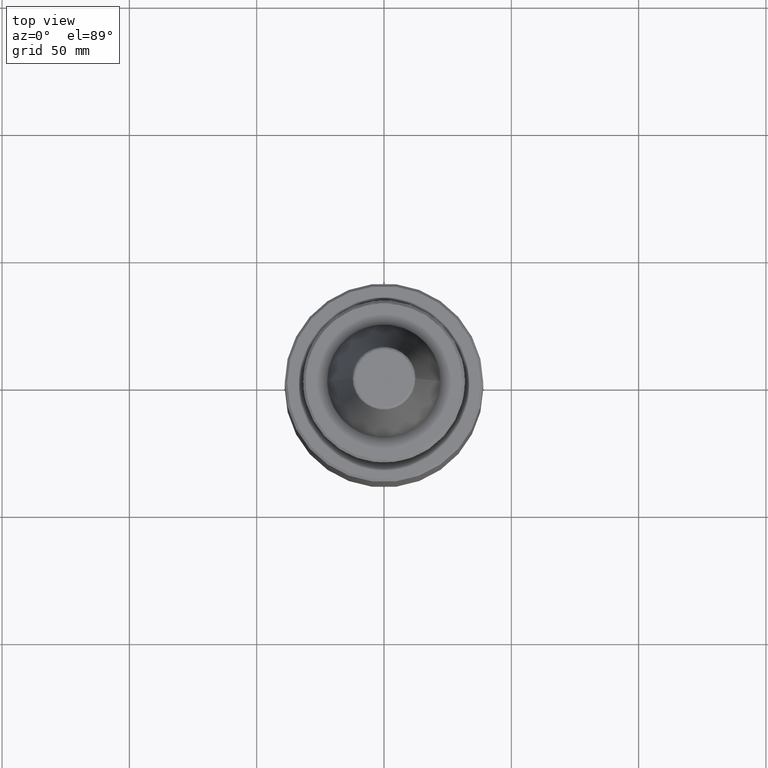
[diagram: clean part render]
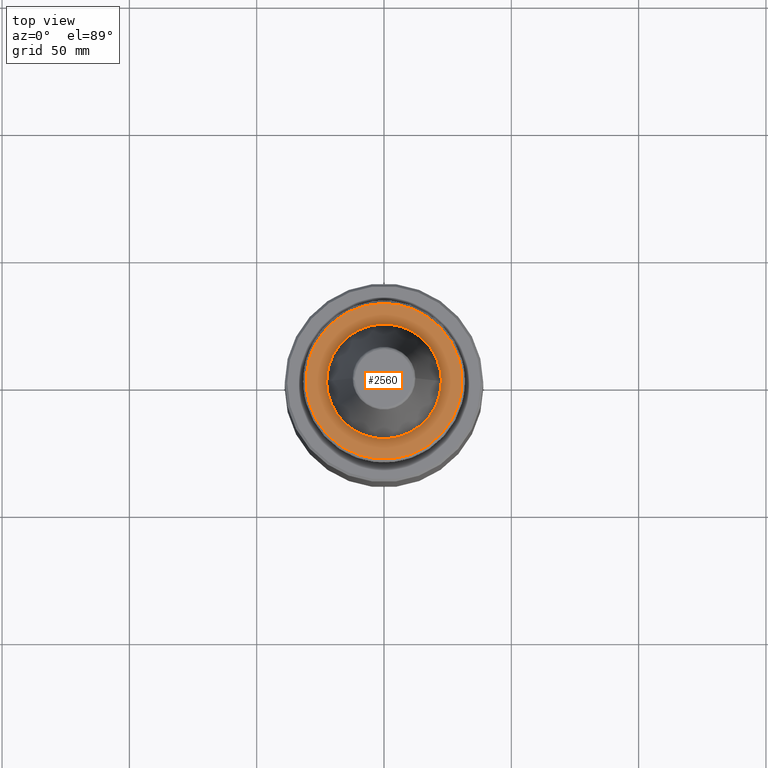
[diagram: same view with one face highlighted and labeled with its STEP entity id]
A machine part, top view. The second image highlights one B-rep face of the part: STEP entity #2560.
In plain terms, the highlighted planar face has unit normal (0, 0, 1).
Its self-contained STEP definition (entity closure, byte-faithful):
#30 = DIRECTION ( 'NONE',  ( 0.0000000000000000000, 0.0000000000000000000, 1.000000000000000000 ) ) ;
#75 = EDGE_CURVE ( 'NONE', #1200, #4271, #2965, .T. ) ;
#150 = CARTESIAN_POINT ( 'NONE',  ( 22.50000000000000400, 0.0000000000000000000, -3.199999999999999300 ) ) ;
#167 = EDGE_CURVE ( 'NONE', #2088, #1413, #4087, .T. ) ;
#207 = CARTESIAN_POINT ( 'NONE',  ( 29.30593451889331300, -8.750000000000007100, -3.200000000000008200 ) ) ;
#214 = CARTESIAN_POINT ( 'NONE',  ( 28.85918037033907500, -10.24629117983707400, -3.200000000000000200 ) ) ;
#217 = CARTESIAN_POINT ( 'NONE',  ( 28.30117587104767600, -11.69968984085176400, -3.200000000000000600 ) ) ;
#218 = CARTESIAN_POINT ( 'NONE',  ( 27.61100680695568600, -13.15427429998765200, -3.200000000000000600 ) ) ;
#220 = CARTESIAN_POINT ( 'NONE',  ( 27.58831379343226000, -13.20180910046797300, -3.199999999999998800 ) ) ;
#223 = CARTESIAN_POINT ( 'NONE',  ( 27.54438001541412700, -13.29323302809357600, -3.200000000000000200 ) ) ;
#229 = CARTESIAN_POINT ( 'NONE',  ( 27.47815279795560900, -13.43017972973373400, -3.199999999999999300 ) ) ;
#231 = CARTESIAN_POINT ( 'NONE',  ( 27.32133677086658000, -13.74839770497310600, -3.199999999999999700 ) ) ;
#237 = CARTESIAN_POINT ( 'NONE',  ( 26.99856130461180500, -14.37953634110118300, -3.200000000000000200 ) ) ;
#238 = CARTESIAN_POINT ( 'NONE',  ( 26.31643672379539500, -15.62062435595463600, -3.200000000000001100 ) ) ;
#245 = CARTESIAN_POINT ( 'NONE',  ( 25.66906082885528000, -16.64808964171013600, -3.200000000000001500 ) ) ;
#248 = CARTESIAN_POINT ( 'NONE',  ( 25.18089566416714200, -17.35872434408001300, -3.200000000000000200 ) ) ;
#252 = CARTESIAN_POINT ( 'NONE',  ( 25.15049554832426500, -17.40274506740398400, -3.199999999999999300 ) ) ;
#263 = CARTESIAN_POINT ( 'NONE',  ( 25.09107183107767400, -17.48831565733838300, -3.200000000000000200 ) ) ;
#272 = CARTESIAN_POINT ( 'NONE',  ( 25.00162825172691000, -17.61641936753450800, -3.200000000000000200 ) ) ;
#277 = CARTESIAN_POINT ( 'NONE',  ( 24.79077054220887900, -17.91356280172054100, -3.200000000000000200 ) ) ;
#278 = CARTESIAN_POINT ( 'NONE',  ( 24.36043102570795300, -18.50078877833959000, -3.199999999999999700 ) ) ;
#279 = CARTESIAN_POINT ( 'NONE',  ( 23.46525560284658200, -19.64699716456565400, -3.200000000000000600 ) ) ;
#283 = CARTESIAN_POINT ( 'NONE',  ( 22.63882571492048600, -20.58104395216734200, -3.200000000000000200 ) ) ;
#289 = CARTESIAN_POINT ( 'NONE',  ( 21.98943496481060900, -21.25737027114399100, -3.199999999999999700 ) ) ;
#292 = CARTESIAN_POINT ( 'NONE',  ( 21.91487604513272200, -21.33423715766516400, -3.199999999999999300 ) ) ;
#295 = CARTESIAN_POINT ( 'NONE',  ( 21.76708313657482600, -21.48502183609672400, -3.199999999999999700 ) ) ;
#300 = CARTESIAN_POINT ( 'NONE',  ( 21.54431431264793100, -21.70996927687924600, -3.200000000000000200 ) ) ;
#303 = CARTESIAN_POINT ( 'NONE',  ( 21.01696416252155700, -22.22623960065148900, -3.199999999999999300 ) ) ;
#305 = CARTESIAN_POINT ( 'NONE',  ( 19.93203895174773200, -23.22435209598143800, -3.200000000000001100 ) ) ;
#313 = CARTESIAN_POINT ( 'NONE',  ( 18.95028892447686900, -24.02085740246784000, -3.199999999999999700 ) ) ;
#321 = CARTESIAN_POINT ( 'NONE',  ( 16.91770336017261700, -25.53517509609310600, -3.200000000000000200 ) ) ;
#325 = CARTESIAN_POINT ( 'NONE',  ( 15.48792760815194000, -26.42690957762343400, -3.199999999999998400 ) ) ;
#330 = CARTESIAN_POINT ( 'NONE',  ( 13.89121605744946600, -27.24785232258912500, -3.199999999999998800 ) ) ;
#331 = CARTESIAN_POINT ( 'NONE',  ( 13.79955834375945400, -27.29438307719280800, -3.199999999999999700 ) ) ;
#335 = CARTESIAN_POINT ( 'NONE',  ( 13.61336996243719500, -27.38773233231433200, -3.199999999999999700 ) ) ;
#338 = CARTESIAN_POINT ( 'NONE',  ( 13.33348093168641700, -27.52628396581056700, -3.200000000000000200 ) ) ;
#341 = CARTESIAN_POINT ( 'NONE',  ( -24.35467712833948900, 18.50000000000000000, -3.200000000000008200 ) ) ;
#343 = CARTESIAN_POINT ( 'NONE',  ( 12.67616131522955100, -27.83926536633289600, -3.200000000000000200 ) ) ;
#346 = CARTESIAN_POINT ( 'NONE',  ( 11.34454123682887200, -28.42400519016858600, -3.200000000000001100 ) ) ;
#350 = CARTESIAN_POINT ( 'NONE',  ( 10.17404257736498800, -28.85454279252668600, -3.199999999999999700 ) ) ;
#351 = CARTESIAN_POINT ( 'NONE',  ( 9.331192961517226400, -29.12613594598023800, -3.199999999999999300 ) ) ;
#357 = CARTESIAN_POINT ( 'NONE',  ( 9.284161809032633900, -29.14115916764607700, -3.199999999999999300 ) ) ;
#366 = CARTESIAN_POINT ( 'NONE',  ( 9.187465360217490900, -29.17179097118495400, -3.200000000000000200 ) ) ;
#374 = CARTESIAN_POINT ( 'NONE',  ( 9.042334779831751500, -29.21737119051607600, -3.200000000000000200 ) ) ;
#376 = CARTESIAN_POINT ( 'NONE',  ( 8.703095408790513700, -29.32115263378182800, -3.199999999999999700 ) ) ;
#377 = AXIS2_PLACEMENT_3D ( 'NONE', #1411, #1606, #789 ) ;
#379 = CARTESIAN_POINT ( 'NONE',  ( 8.022211266143289200, -29.51842591295242400, -3.199999999999999300 ) ) ;
#380 = CARTESIAN_POINT ( 'NONE',  ( 6.650821378589867500, -29.87181404184999800, -3.200000000000001100 ) ) ;
#384 = CARTESIAN_POINT ( 'NONE',  ( 5.458850156814379200, -30.10416084471602700, -3.199999999999999700 ) ) ;
#393 = CARTESIAN_POINT ( 'NONE',  ( 4.606748291942334800, -30.23542110148226000, -3.199999999999999700 ) ) ;
#397 = CARTESIAN_POINT ( 'NONE',  ( 4.560392810196569600, -30.24244440558976200, -3.200000000000001100 ) ) ;
#400 = CARTESIAN_POINT ( 'NONE',  ( 4.463888020560950100, -30.25684056681975800, -3.199999999999999700 ) ) ;
#401 = CARTESIAN_POINT ( 'NONE',  ( 4.319105167327790300, -30.27808647421277000, -3.199999999999999300 ) ) ;
#409 = B_SPLINE_CURVE_WITH_KNOTS ( 'NONE', 3,
 ( #1912, #867, #3094, #3848, #3854, #3578, #2953, #1123, #1853, #2405, #4043, #2039, #1985, #2959, #3256, #4208, #568, #1513, #2151, #4193, #2844, #2012, #3262, #2014, #3409, #3259, #3534, #3611, #4009, #3064, #3396, #3371, #3296, #3400, #3362, #2687, #3137, #3202, #3198, #4018, #3675, #2714, #2875, #3057, #3943, #3446, #2072, #2933, #2964, #3641, #2928, #2939, #2938, #3230, #2785, #2987, #3233, #1849, #4263, #3806, #4267, #4270, #3872, #1501, #3697, #3723, #1962, #3770, #877, #3671, #4038, #4039, #4095, #4100, #4115, #4156, #4159, #4160, #4207, #2793, #4112, #1650, #3186, #3187, #4286, #3672, #3779, #3157, #3643, #2045, #3565, #3042, #3688, #3550, #3556, #3520, #3860, #2482, #2901, #3569, #4282, #3310, #3247, #2000, #3562, #3786 ),
 .UNSPECIFIED., .F., .F.,
 ( 4, 1, 1, 1, 1, 1, 2, 2, 1, 1, 1, 1, 2, 2, 1, 1, 1, 2, 2, 2, 1, 1, 1, 2, 2, 1, 1, 1, 1, 2, 2, 1, 1, 1, 1, 1, 2, 2, 2, 1, 1, 1, 1, 1, 2, 2, 1, 1, 1, 1, 2, 2, 1, 1, 1, 2, 2, 2, 1, 1, 1, 2, 2, 1, 1, 1, 1, 2, 2, 1, 1, 1, 1, 1, 2, 2, 4 ),
 ( 0.0000000000000000000, 0.03124999999999839000, 0.04687499999999758500, 0.05468749999999717600, 0.05859374999999699500, 0.06054687499999689800, 0.06152343749999685700, 0.06249999999999680800, 0.09374999999999644700, 0.1093749999999962800, 0.1171874999999962000, 0.1210937499999961300, 0.1230468749999961400, 0.1249999999999961400, 0.1562499999999958900, 0.1718749999999958400, 0.1796874999999957800, 0.1835937499999957800, 0.1874999999999957800, 0.2499999999999961100, 0.2812499999999963400, 0.2968749999999964500, 0.3046874999999965000, 0.3085937499999965600, 0.3124999999999965600, 0.3437499999999969500, 0.3593749999999971700, 0.3671874999999973400, 0.3710937499999974500, 0.3730468749999974500, 0.3749999999999974500, 0.4062499999999965000, 0.4218749999999960000, 0.4296874999999957800, 0.4335937499999956700, 0.4355468749999956100, 0.4365234374999956100, 0.4374999999999956100, 0.4999999999999944500, 0.5312499999999938900, 0.5468749999999936700, 0.5546874999999936700, 0.5585937499999935600, 0.5605468749999935600, 0.5615234374999934500, 0.5624999999999934500, 0.5937499999999932300, 0.6093749999999931200, 0.6171874999999931200, 0.6210937499999930100, 0.6230468749999930100, 0.6249999999999930100, 0.6562499999999930100, 0.6718749999999931200, 0.6796874999999932300, 0.6835937499999932300, 0.6874999999999932300, 0.7499999999999935600, 0.7812499999999936700, 0.7968749999999937800, 0.8046874999999938900, 0.8085937499999938900, 0.8124999999999938900, 0.8437499999999942300, 0.8593749999999944500, 0.8671874999999946700, 0.8710937499999947800, 0.8730468749999948900, 0.8749999999999950000, 0.9062499999999963400, 0.9218749999999971100, 0.9296874999999975600, 0.9335937499999976700, 0.9355468749999977800, 0.9365234374999977800, 0.9374999999999978900, 1.000000000000000000 ),
 .UNSPECIFIED. ) ;
#412 = ORIENTED_EDGE ( 'NONE', *, *, #1022, .T. ) ;
#415 = CARTESIAN_POINT ( 'NONE',  ( 3.981098828325630100, -30.32522191696599000, -3.200000000000001100 ) ) ;
#431 = AXIS2_PLACEMENT_3D ( 'NONE', #1792, #2988, #2936 ) ;
#433 = CARTESIAN_POINT ( 'NONE',  ( 3.304367424488805000, -30.40973943781709500, -3.200000000000000600 ) ) ;
#435 = CARTESIAN_POINT ( 'NONE',  ( 1.948029713485159900, -30.53976102089799500, -3.199999999999999700 ) ) ;
#437 = CARTESIAN_POINT ( 'NONE',  ( 0.7805261269163517000, -30.58432787733083600, -3.200000000000001100 ) ) ;
#441 = CARTESIAN_POINT ( 'NONE',  ( -1.561052253832720300, -30.58428797049064600, -3.200000000000001100 ) ) ;
#443 = CARTESIAN_POINT ( 'NONE',  ( -3.114025609422949300, -30.46541640380770100, -3.200000000000000200 ) ) ;
#449 = CARTESIAN_POINT ( 'NONE',  ( -4.705085878603386900, -30.22027126947340700, -3.200000000000000600 ) ) ;
#451 = DIRECTION ( 'NONE',  ( -0.0000000000000000000, -0.0000000000000000000, 1.000000000000000000 ) ) ;
#452 = CARTESIAN_POINT ( 'NONE',  ( -4.757131534854949000, -30.21212539776216800, -3.200000000000000600 ) ) ;
#456 = CARTESIAN_POINT ( 'NONE',  ( -4.857303280956157800, -30.19618385838561600, -3.200000000000000600 ) ) ;
#464 = CARTESIAN_POINT ( 'NONE',  ( -5.007473042406692400, -30.17190452208984700, -3.200000000000000600 ) ) ;
#468 = CARTESIAN_POINT ( 'NONE',  ( -5.357254148549006200, -30.11268354678315300, -3.200000000000000200 ) ) ;
#478 = ORIENTED_EDGE ( 'NONE', *, *, #75, .T. ) ;
#481 = CARTESIAN_POINT ( 'NONE',  ( -6.054356345197882100, -29.98396483370338900, -3.200000000000000600 ) ) ;
#485 = CARTESIAN_POINT ( 'NONE',  ( -7.438720675952639600, -29.68542035767848500, -3.199999999999999700 ) ) ;
#489 = CARTESIAN_POINT ( 'NONE',  ( -8.608449995097272400, -29.35905586417358700, -3.199999999999999700 ) ) ;
#492 = CARTESIAN_POINT ( 'NONE',  ( -9.429042497908962900, -29.09460387900230300, -3.199999999999999700 ) ) ;
#494 = CARTESIAN_POINT ( 'NONE',  ( -9.479920520537861600, -29.07806852477693100, -3.199999999999999700 ) ) ;
#498 = CARTESIAN_POINT ( 'NONE',  ( -9.578915174282531800, -29.04560989628072000, -3.200000000000000200 ) ) ;
#501 = CARTESIAN_POINT ( 'NONE',  ( -9.727253638791076200, -28.99655467839322000, -3.200000000000000200 ) ) ;
#505 = CARTESIAN_POINT ( 'NONE',  ( -10.07230210988518800, -28.87952157732034000, -3.200000000000000200 ) ) ;
#506 = CARTESIAN_POINT ( 'NONE',  ( -10.75810060103672100, -28.63517167116631900, -3.199999999999999700 ) ) ;
#511 = CARTESIAN_POINT ( 'NONE',  ( -12.11250377919313700, -28.10533704282527600, -3.200000000000001100 ) ) ;
#513 = CARTESIAN_POINT ( 'NONE',  ( -13.24394569621862800, -27.58067624819064200, -3.200000000000000600 ) ) ;
#519 = CARTESIAN_POINT ( 'NONE',  ( -14.07778958757631200, -27.15192223847207100, -3.199999999999999700 ) ) ;
#523 = CARTESIAN_POINT ( 'NONE',  ( -14.17277443620453800, -27.10247095660120900, -3.199999999999999300 ) ) ;
#524 = CARTESIAN_POINT ( 'NONE',  ( -14.35953925149539000, -27.00399422412742800, -3.199999999999999300 ) ) ;
#528 = CARTESIAN_POINT ( 'NONE',  ( -14.63881711983233200, -26.85489300922699100, -3.200000000000000600 ) ) ;
#533 = CARTESIAN_POINT ( 'NONE',  ( -15.28437999708978300, -26.49728736113105000, -3.200000000000000200 ) ) ;
#543 = CARTESIAN_POINT ( 'NONE',  ( -16.55116382282311000, -25.74326481162604800, -3.200000000000000600 ) ) ;
#544 = CARTESIAN_POINT ( 'NONE',  ( -17.59524950982610700, -25.03042619208500200, -3.200000000000000200 ) ) ;
#548 = CARTESIAN_POINT ( 'NONE',  ( -19.62778218947417800, -23.51603751685868800, -3.199999999999999300 ) ) ;
#549 = CARTESIAN_POINT ( 'NONE',  ( -20.89129424423141800, -22.40114452925218900, -3.200000000000000200 ) ) ;
#553 = CARTESIAN_POINT ( 'NONE',  ( -22.13473294562368900, -21.10604030068857600, -3.199999999999999700 ) ) ;
#554 = CARTESIAN_POINT ( 'NONE',  ( -22.20554153728639700, -21.03152593330346000, -3.200000000000000200 ) ) ;
#555 = CARTESIAN_POINT ( 'NONE',  ( -22.34825637510536800, -20.87982665237509000, -3.200000000000000200 ) ) ;
#560 = CARTESIAN_POINT ( 'NONE',  ( -22.56109142496701000, -20.65127541911947900, -3.199999999999999700 ) ) ;
#565 = CARTESIAN_POINT ( 'NONE',  ( -23.04904609324316300, -20.11097302514834300, -3.199999999999999700 ) ) ;
#567 = CARTESIAN_POINT ( 'NONE',  ( -23.99031363752471800, -19.00230350504062900, -3.200000000000000200 ) ) ;
#568 = CARTESIAN_POINT ( 'NONE',  ( -20.95368502148434700, 8.197263642344069000, -3.199999999999999300 ) ) ;
#571 = CARTESIAN_POINT ( 'NONE',  ( -24.73772846015907600, -18.00390437552178100, -3.200000000000000600 ) ) ;
#573 = CARTESIAN_POINT ( 'NONE',  ( -25.23910393721066500, -17.27398592321673800, -3.200000000000001100 ) ) ;
#580 = CARTESIAN_POINT ( 'NONE',  ( -25.26695455758237000, -17.23321866383328400, -3.200000000000001100 ) ) ;
#583 = ORIENTED_EDGE ( 'NONE', *, *, #1768, .T. ) ;
#589 = CARTESIAN_POINT ( 'NONE',  ( -25.32397030503437600, -17.14932757286770800, -3.199999999999999700 ) ) ;
#600 = CARTESIAN_POINT ( 'NONE',  ( -25.40916637817199900, -17.02330348438457400, -3.200000000000000600 ) ) ;
#601 = CARTESIAN_POINT ( 'NONE',  ( -25.60566437921046300, -16.72793511368061600, -3.200000000000000600 ) ) ;
#604 = CARTESIAN_POINT ( 'NONE',  ( -25.98948903615665500, -16.13194971529933500, -3.200000000000001100 ) ) ;
#610 = CARTESIAN_POINT ( 'NONE',  ( -26.72045296952620300, -14.91898429064329100, -3.200000000000000200 ) ) ;
#614 = CARTESIAN_POINT ( 'NONE',  ( -27.28410426008951400, -13.84330885026365000, -3.200000000000000200 ) ) ;
#617 = CARTESIAN_POINT ( 'NONE',  ( -27.65365956857718600, -13.06437642884289800, -3.200000000000000200 ) ) ;
#619 = CARTESIAN_POINT ( 'NONE',  ( -27.67364674244896200, -13.02197758003636700, -3.199999999999999700 ) ) ;
#625 = CARTESIAN_POINT ( 'NONE',  ( -27.71504625243959900, -12.93363446210930500, -3.200000000000000200 ) ) ;
#630 = CARTESIAN_POINT ( 'NONE',  ( -27.77681930598629400, -12.80099507029938600, -3.200000000000000200 ) ) ;
#633 = CARTESIAN_POINT ( 'NONE',  ( -27.91867295085388500, -12.49063015164102500, -3.200000000000000200 ) ) ;
#636 = DIRECTION ( 'NONE',  ( 1.000000000000000000, 0.0000000000000000000, 0.0000000000000000000 ) ) ;
#639 = CARTESIAN_POINT ( 'NONE',  ( -28.19324632029016400, -11.86640829658339900, -3.200000000000000600 ) ) ;
#645 = CARTESIAN_POINT ( 'NONE',  ( -28.70585737796716300, -10.60399651550457800, -3.199999999999999700 ) ) ;
#649 = CARTESIAN_POINT ( 'NONE',  ( -29.08260568821225400, -9.497984010070885200, -3.199999999999999700 ) ) ;
#651 = CARTESIAN_POINT ( 'NONE',  ( -29.30593451889332000, -8.749999999999980500, -3.200000000000008200 ) ) ;
#789 = DIRECTION ( 'NONE',  ( 1.000000000000000000, 0.0000000000000000000, 0.0000000000000000000 ) ) ;
#809 = CARTESIAN_POINT ( 'NONE',  ( -18.49999999999999300, 24.35467712833949200, -3.200000000000008200 ) ) ;
#867 = CARTESIAN_POINT ( 'NONE',  ( -22.50000000000000700, 0.6880163828565797300, -3.200000000000001100 ) ) ;
#877 = CARTESIAN_POINT ( 'NONE',  ( 8.197263642342381500, 20.95368502148494400, -3.199999999999999700 ) ) ;
#986 = VERTEX_POINT ( 'NONE', #2331 ) ;
#1022 = EDGE_CURVE ( 'NONE', #2163, #1200, #3907, .T. ) ;
#1024 = CARTESIAN_POINT ( 'NONE',  ( 0.0000000000000000000, 0.0000000000000000000, -3.200000000000000200 ) ) ;
#1072 = CARTESIAN_POINT ( 'NONE',  ( -18.49999999999999300, 24.35467712833949200, -3.200000000000008200 ) ) ;
#1076 = CARTESIAN_POINT ( 'NONE',  ( -16.56085603400545400, 25.82766579420669100, -3.200000000000000200 ) ) ;
#1079 = CARTESIAN_POINT ( 'NONE',  ( -14.47569103934079100, 27.05153356260233700, -3.200000000000001100 ) ) ;
#1080 = CARTESIAN_POINT ( 'NONE',  ( -12.17478045277671400, 28.05674127324285600, -3.200000000000000600 ) ) ;
#1083 = CARTESIAN_POINT ( 'NONE',  ( -12.10176357994678900, 28.08831770797851100, -3.200000000000000200 ) ) ;
#1089 = CARTESIAN_POINT ( 'NONE',  ( -11.95872026364780000, 28.14951867897517300, -3.200000000000000200 ) ) ;
#1094 = CARTESIAN_POINT ( 'NONE',  ( -11.74385340895946000, 28.24048383201479200, -3.199999999999998800 ) ) ;
#1095 = CARTESIAN_POINT ( 'NONE',  ( -11.24038425300771300, 28.44688173158634500, -3.200000000000000200 ) ) ;
#1101 = CARTESIAN_POINT ( 'NONE',  ( -10.22499329438831600, 28.83626103397912000, -3.200000000000000600 ) ) ;
#1114 = CARTESIAN_POINT ( 'NONE',  ( -9.340167935487325900, 29.12987215588665500, -3.200000000000001100 ) ) ;
#1118 = CARTESIAN_POINT ( 'NONE',  ( -8.594763330007086900, 29.35224666533308000, -3.200000000000000200 ) ) ;
#1120 = CARTESIAN_POINT ( 'NONE',  ( -8.442993445794760600, 29.39627059819352400, -3.200000000000001500 ) ) ;
#1122 = CARTESIAN_POINT ( 'NONE',  ( -8.141340568232401200, 29.48124923291835800, -3.200000000000000600 ) ) ;
#1123 = CARTESIAN_POINT ( 'NONE',  ( -22.13986916256529700, 4.009566559497096200, -3.200000000000000200 ) ) ;
#1125 = CARTESIAN_POINT ( 'NONE',  ( -7.688059179634872300, 29.60519698498068300, -3.199999999999999700 ) ) ;
#1128 = CARTESIAN_POINT ( 'NONE',  ( -6.624788100462759600, 29.86976700628514100, -3.200000000000001100 ) ) ;
#1135 = CARTESIAN_POINT ( 'NONE',  ( -5.703788022696000000, 30.05429890996154500, -3.200000000000000200 ) ) ;
#1139 = CARTESIAN_POINT ( 'NONE',  ( -3.848954711098727400, 30.36703951691590900, -3.200000000000000200 ) ) ;
#1142 = CARTESIAN_POINT ( 'NONE',  ( -2.603266312790086800, 30.49913331156700400, -3.199999999999999700 ) ) ;
#1146 = CARTESIAN_POINT ( 'NONE',  ( -1.037282440229544600, 30.56832190550193200, -3.200000000000000600 ) ) ;
#1156 = CARTESIAN_POINT ( 'NONE',  ( -0.7285515701980412900, 30.57722589313950900, -3.199999999999999700 ) ) ;
#1163 = CARTESIAN_POINT ( 'NONE',  ( -0.1069271606823981000, 30.58574494882358200, -3.200000000000000200 ) ) ;
#1169 = ORIENTED_EDGE ( 'NONE', *, *, #2336, .T. ) ;
#1173 = CARTESIAN_POINT ( 'NONE',  ( 0.8252062185630970600, 30.58430088160914900, -3.200000000000000600 ) ) ;
#1174 = CARTESIAN_POINT ( 'NONE',  ( 1.756429892724695700, 30.54018886217315700, -3.200000000000000600 ) ) ;
#1175 = CARTESIAN_POINT ( 'NONE',  ( 2.454392795803937800, 30.48577087148537100, -3.200000000000000200 ) ) ;
#1178 = CARTESIAN_POINT ( 'NONE',  ( 2.528533460623735500, 30.47970956005867300, -3.199999999999999700 ) ) ;
#1181 = CARTESIAN_POINT ( 'NONE',  ( 2.680059272113283000, 30.46677238502096000, -3.200000000000000200 ) ) ;
#1184 = CARTESIAN_POINT ( 'NONE',  ( 2.907181702341881100, 30.44653720226314800, -3.199999999999999300 ) ) ;
#1185 = CARTESIAN_POINT ( 'NONE',  ( 3.435970030501877200, 30.39351583441936800, -3.200000000000001500 ) ) ;
#1186 = CARTESIAN_POINT ( 'NONE',  ( 4.488890650661606900, 30.26424933309646200, -3.199999999999999700 ) ) ;
#1190 = CARTESIAN_POINT ( 'NONE',  ( 6.576107746340010600, 29.91282126790918400, -3.200000000000000600 ) ) ;
#1191 = CARTESIAN_POINT ( 'NONE',  ( 8.333223866108296500, 29.45234853339185200, -3.200000000000000200 ) ) ;
#1198 = CARTESIAN_POINT ( 'NONE',  ( 11.80488663217959200, 28.31907149283381000, -3.199999999999999700 ) ) ;
#1200 = VERTEX_POINT ( 'NONE', #1841 ) ;
#1201 = CARTESIAN_POINT ( 'NONE',  ( 13.99881594514026300, 27.30134385075362900, -3.200000000000000200 ) ) ;
#1204 = CARTESIAN_POINT ( 'NONE',  ( 16.13498759199469400, 25.98207429179466400, -3.200000000000000200 ) ) ;
#1205 = CARTESIAN_POINT ( 'NONE',  ( 16.20252111302220800, 25.94001894739672000, -3.200000000000000600 ) ) ;
#1210 = CARTESIAN_POINT ( 'NONE',  ( 16.33427142386733900, 25.85726144148922100, -3.200000000000000200 ) ) ;
#1217 = CARTESIAN_POINT ( 'NONE',  ( 16.53138120580552700, 25.73240088654140200, -3.199999999999999700 ) ) ;
#1221 = CARTESIAN_POINT ( 'NONE',  ( 16.98769424002150100, 25.43598951905729100, -3.200000000000000200 ) ) ;
#1222 = CIRCLE ( 'NONE', #1910, 30.58431457505076500 ) ;
#1234 = CARTESIAN_POINT ( 'NONE',  ( 17.88588114722745500, 24.82288649366540800, -3.200000000000000200 ) ) ;
#1235 = CARTESIAN_POINT ( 'NONE',  ( 18.63100279130232900, 24.26260340260329700, -3.199999999999999300 ) ) ;
#1236 = CARTESIAN_POINT ( 'NONE',  ( 19.23818591257809300, 23.77638626441000000, -3.200000000000000200 ) ) ;
#1239 = CARTESIAN_POINT ( 'NONE',  ( 19.36078262650642800, 23.67667543167849300, -3.200000000000001100 ) ) ;
#1240 = CARTESIAN_POINT ( 'NONE',  ( 19.60237854233164600, 23.47705769606649500, -3.200000000000001100 ) ) ;
#1241 = CARTESIAN_POINT ( 'NONE',  ( 19.96233499371120600, 23.17496761740666100, -3.200000000000000200 ) ) ;
#1242 = CARTESIAN_POINT ( 'NONE',  ( 20.78517142375569200, 22.45144644050765900, -3.200000000000000200 ) ) ;
#1250 = CARTESIAN_POINT ( 'NONE',  ( 21.46121072406610600, 21.79932372883518700, -3.200000000000000200 ) ) ;
#1256 = CARTESIAN_POINT ( 'NONE',  ( 22.77429056695474300, 20.45246270162109400, -3.200000000000001100 ) ) ;
#1258 = CARTESIAN_POINT ( 'NONE',  ( 23.59206616273494100, 19.50355204636023000, -3.199999999999999700 ) ) ;
#1262 = CARTESIAN_POINT ( 'NONE',  ( 24.54047191476543300, 18.25550594148994000, -3.200000000000000600 ) ) ;
#1265 = CARTESIAN_POINT ( 'NONE',  ( 24.72355445175357900, 18.00675945254044300, -3.200000000000000200 ) ) ;
#1281 = CARTESIAN_POINT ( 'NONE',  ( 25.08445269893013600, 17.50055599937444800, -3.200000000000000200 ) ) ;
#1284 = CARTESIAN_POINT ( 'NONE',  ( 25.61393462947731700, 16.73340307638303400, -3.200000000000000200 ) ) ;
#1292 = CARTESIAN_POINT ( 'NONE',  ( 26.10782023937147400, 15.94270692366432000, -3.200000000000000200 ) ) ;
#1295 = CARTESIAN_POINT ( 'NONE',  ( 26.46043628646557600, 15.33791319426163500, -3.199999999999999300 ) ) ;
#1301 = CARTESIAN_POINT ( 'NONE',  ( 26.49765628487140000, 15.27351905694589700, -3.200000000000000600 ) ) ;
#1304 = CARTESIAN_POINT ( 'NONE',  ( 26.57327955334312700, 15.14158967653228200, -3.199999999999999300 ) ) ;
#1305 = CARTESIAN_POINT ( 'NONE',  ( 26.68593816532839800, 14.94335966608096700, -3.200000000000000600 ) ) ;
#1307 = CARTESIAN_POINT ( 'NONE',  ( 26.94337422490445300, 14.47847139621148000, -3.199999999999999300 ) ) ;
#1310 = CARTESIAN_POINT ( 'NONE',  ( 27.43651020383163100, 13.53928854120698800, -3.200000000000001500 ) ) ;
#1311 = CARTESIAN_POINT ( 'NONE',  ( 28.33583760078616000, 11.62329757013587900, -3.200000000000000600 ) ) ;
#1336 = CARTESIAN_POINT ( 'NONE',  ( 29.30593451889332000, 8.749999999999980500, -3.200000000000008200 ) ) ;
#1341 = CARTESIAN_POINT ( 'NONE',  ( 28.95764183663322900, 9.916519147397023600, -3.200000000000000200 ) ) ;
#1411 = CARTESIAN_POINT ( 'NONE',  ( 0.0000000000000000000, 0.0000000000000000000, -3.200000000000008200 ) ) ;
#1413 = VERTEX_POINT ( 'NONE', #1487 ) ;
#1451 = EDGE_CURVE ( 'NONE', #986, #3636, #3910, .T. ) ;
#1487 = CARTESIAN_POINT ( 'NONE',  ( 30.58431457505076500, 0.0000000000000000000, -3.200000000000003700 ) ) ;
#1501 = CARTESIAN_POINT ( 'NONE',  ( 5.873028755120320600, 21.74157624393063400, -3.200000000000000600 ) ) ;
#1513 = CARTESIAN_POINT ( 'NONE',  ( -20.93772414133938800, 8.237955812653009200, -3.200000000000000200 ) ) ;
#1606 = DIRECTION ( 'NONE',  ( -0.0000000000000000000, -0.0000000000000000000, 1.000000000000000000 ) ) ;
#1611 = AXIS2_PLACEMENT_3D ( 'NONE', #1652, #451, #636 ) ;
#1650 = CARTESIAN_POINT ( 'NONE',  ( 18.06135158014742400, 13.42792791066801300, -3.200000000000000600 ) ) ;
#1652 = CARTESIAN_POINT ( 'NONE',  ( 0.0000000000000000000, 0.0000000000000000000, -3.200000000000008200 ) ) ;
#1768 = EDGE_CURVE ( 'NONE', #4271, #2088, #3087, .T. ) ;
#1787 = CARTESIAN_POINT ( 'NONE',  ( -29.30593451889332000, -8.749999999999980500, -3.200000000000008200 ) ) ;
#1792 = CARTESIAN_POINT ( 'NONE',  ( 0.0000000000000000000, 0.0000000000000000000, -3.200000000000008200 ) ) ;
#1804 = VERTEX_POINT ( 'NONE', #150 ) ;
#1841 = CARTESIAN_POINT ( 'NONE',  ( -29.30593451889331300, 8.750000000000008900, -3.200000000000008200 ) ) ;
#1849 = CARTESIAN_POINT ( 'NONE',  ( 3.797919010150632600, 22.17744484798479100, -3.200000000000000600 ) ) ;
#1853 = CARTESIAN_POINT ( 'NONE',  ( -22.13216582914423100, 4.051871761184235000, -3.200000000000000200 ) ) ;
#1859 = CARTESIAN_POINT ( 'NONE',  ( -22.50000000000000400, 2.755455298081544800E-015, -3.199999999999999300 ) ) ;
#1899 = DIRECTION ( 'NONE',  ( -0.0000000000000000000, -0.0000000000000000000, 1.000000000000000000 ) ) ;
#1910 = AXIS2_PLACEMENT_3D ( 'NONE', #4194, #1899, #3874 ) ;
#1912 = CARTESIAN_POINT ( 'NONE',  ( -22.50000000000000400, 2.755455298081544800E-015, -3.199999999999999300 ) ) ;
#1962 = CARTESIAN_POINT ( 'NONE',  ( 7.984698353428139100, 21.03591195339260300, -3.200000000000000200 ) ) ;
#1976 = EDGE_CURVE ( 'NONE', #1413, #986, #3023, .T. ) ;
#1985 = CARTESIAN_POINT ( 'NONE',  ( -21.36063849916189700, 7.086048807666240500, -3.199999999999999300 ) ) ;
#2000 = CARTESIAN_POINT ( 'NONE',  ( 22.37479026312431400, 2.741111199236805400, -3.200000000000000600 ) ) ;
#2012 = CARTESIAN_POINT ( 'NONE',  ( -19.18907189198502300, 11.75138774876048900, -3.200000000000000600 ) ) ;
#2014 = CARTESIAN_POINT ( 'NONE',  ( -18.93590339580232400, 12.15280497094196100, -3.199999999999999700 ) ) ;
#2022 = EDGE_LOOP ( 'NONE', ( #3920, #2350 ) ) ;
#2025 = EDGE_LOOP ( 'NONE', ( #478, #583, #2761, #2791, #4190, #1169, #412 ) ) ;
#2039 = CARTESIAN_POINT ( 'NONE',  ( -21.74157624392201900, 5.873028755144217100, -3.200000000000000200 ) ) ;
#2045 = CARTESIAN_POINT ( 'NONE',  ( 20.66783356944120300, 8.896980882709847500, -3.200000000000000200 ) ) ;
#2072 = CARTESIAN_POINT ( 'NONE',  ( -4.407618502888016800, 22.06440325785875700, -3.199999999999999300 ) ) ;
#2088 = VERTEX_POINT ( 'NONE', #4204 ) ;
#2151 = CARTESIAN_POINT ( 'NONE',  ( -20.64043889494947600, 8.988933404968230800, -3.200000000000000600 ) ) ;
#2163 = VERTEX_POINT ( 'NONE', #341 ) ;
#2174 = CARTESIAN_POINT ( 'NONE',  ( -22.50000000000000400, 2.755455298081544800E-015, -3.199999999999999300 ) ) ;
#2183 = CARTESIAN_POINT ( 'NONE',  ( -22.50000000000000700, -1.376388306158772500, -3.200000000000000600 ) ) ;
#2195 = CARTESIAN_POINT ( 'NONE',  ( -22.37479026312430700, -2.741111199249898400, -3.200000000000000600 ) ) ;
#2211 = CARTESIAN_POINT ( 'NONE',  ( -22.12045798509555200, -4.115310202398622300, -3.200000000000000200 ) ) ;
#2217 = CARTESIAN_POINT ( 'NONE',  ( -22.11603594838243900, -4.139014538617989700, -3.200000000000000600 ) ) ;
#2224 = CARTESIAN_POINT ( 'NONE',  ( -22.10760170058084000, -4.183831549485550900, -3.200000000000000200 ) ) ;
#2232 = CARTESIAN_POINT ( 'NONE',  ( -22.09485092206732700, -4.251028217309717600, -3.200000000000000600 ) ) ;
#2239 = CARTESIAN_POINT ( 'NONE',  ( -22.06440325785796100, -4.407618502892575000, -3.200000000000000200 ) ) ;
#2251 = CARTESIAN_POINT ( 'NONE',  ( -22.00072453872795100, -4.719991316697491600, -3.200000000000000600 ) ) ;
#2257 = CARTESIAN_POINT ( 'NONE',  ( -21.86223353762273500, -5.341505914864100600, -3.200000000000000600 ) ) ;
#2262 = CARTESIAN_POINT ( 'NONE',  ( -21.54071728403163600, -6.571610993424445500, -3.200000000000000600 ) ) ;
#2278 = CARTESIAN_POINT ( 'NONE',  ( -21.18878749287234700, -7.603831144579803700, -3.199999999999998800 ) ) ;
#2284 = CARTESIAN_POINT ( 'NONE',  ( -20.90345235396920400, -8.324524703927284700, -3.199999999999999700 ) ) ;
#2286 = CARTESIAN_POINT ( 'NONE',  ( -20.88510905071626700, -8.370451108368008900, -3.199999999999999700 ) ) ;
#2307 = CARTESIAN_POINT ( 'NONE',  ( -20.84958280862066700, -8.458563634144654800, -3.200000000000000600 ) ) ;
#2316 = CARTESIAN_POINT ( 'NONE',  ( -20.79589492657008900, -8.590524805360397300, -3.200000000000000200 ) ) ;
#2325 = CARTESIAN_POINT ( 'NONE',  ( -26.43773944749934700, 15.48610090929884100, -3.200000000000000600 ) ) ;
#2326 = CARTESIAN_POINT ( 'NONE',  ( -20.66783356943510700, -8.896980882719226700, -3.200000000000000200 ) ) ;
#2331 = CARTESIAN_POINT ( 'NONE',  ( 29.30593451889332000, 8.749999999999980500, -3.200000000000008200 ) ) ;
#2336 = EDGE_CURVE ( 'NONE', #3636, #2163, #1222, .T. ) ;
#2341 = FACE_BOUND ( 'NONE', #2022, .T. ) ;
#2344 = CARTESIAN_POINT ( 'NONE',  ( -20.40055232576401100, -9.504079748858595500, -3.199999999999999700 ) ) ;
#2347 = CARTESIAN_POINT ( 'NONE',  ( -25.46593605709676900, 17.03706203157484100, -3.199999999999999700 ) ) ;
#2350 = ORIENTED_EDGE ( 'NONE', *, *, #3404, .T. ) ;
#2352 = DIRECTION ( 'NONE',  ( 1.000000000000000000, 0.0000000000000000000, -0.0000000000000000000 ) ) ;
#2356 = CARTESIAN_POINT ( 'NONE',  ( -19.82135572081725200, -10.69502432682423000, -3.200000000000000600 ) ) ;
#2367 = CARTESIAN_POINT ( 'NONE',  ( -19.24838585782649900, -11.67597141482940200, -3.199999999999999700 ) ) ;
#2380 = CARTESIAN_POINT ( 'NONE',  ( -18.78040064549380300, -12.39175045570773800, -3.200000000000000600 ) ) ;
#2399 = CARTESIAN_POINT ( 'NONE',  ( -18.72563884435658800, -12.47437238289159500, -3.200000000000000200 ) ) ;
#2405 = CARTESIAN_POINT ( 'NONE',  ( -22.12851860711429500, 4.071751450877952600, -3.199999999999999300 ) ) ;
#2415 = CARTESIAN_POINT ( 'NONE',  ( -18.61742605471202700, -12.63533988221470800, -3.199999999999999700 ) ) ;
#2448 = CARTESIAN_POINT ( 'NONE',  ( -18.45365423866372400, -12.87560569879659900, -3.200000000000001100 ) ) ;
#2459 = CARTESIAN_POINT ( 'NONE',  ( -18.06135158014722800, -13.42792791066820300, -3.200000000000000600 ) ) ;
#2464 = CARTESIAN_POINT ( 'NONE',  ( -17.23607257883263300, -14.49938022713351800, -3.200000000000000200 ) ) ;
#2473 = CARTESIAN_POINT ( 'NONE',  ( -16.45896426179448100, -15.36086717162741000, -3.200000000000001100 ) ) ;
#2480 = CARTESIAN_POINT ( 'NONE',  ( -14.81177920650302200, -17.00797338683712900, -3.199999999999999300 ) ) ;
#2482 = CARTESIAN_POINT ( 'NONE',  ( 22.00072453873180600, 4.719991316681966300, -3.200000000000000200 ) ) ;
#2495 = CARTESIAN_POINT ( 'NONE',  ( -13.61204652640028800, -17.98264380950038800, -3.200000000000000200 ) ) ;
#2501 = CARTESIAN_POINT ( 'NONE',  ( -12.23098025896354500, -18.88550870197710900, -3.200000000000000200 ) ) ;
#2508 = CARTESIAN_POINT ( 'NONE',  ( -12.15280497094398100, -18.93590339580075400, -3.199999999999999700 ) ) ;
#2512 = CARTESIAN_POINT ( 'NONE',  ( -28.10145510426450200, 12.21006217780604800, -3.200000000000000200 ) ) ;
#2515 = CARTESIAN_POINT ( 'NONE',  ( -11.99256734168715800, -19.03780993567515600, -3.200000000000000200 ) ) ;
#2523 = CARTESIAN_POINT ( 'NONE',  ( -11.75138774876684200, -19.18907189198004900, -3.200000000000000200 ) ) ;
#2529 = CARTESIAN_POINT ( 'NONE',  ( -11.18287332204048700, -19.53083148214458500, -3.200000000000000600 ) ) ;
#2541 = CARTESIAN_POINT ( 'NONE',  ( -10.02279629560528400, -20.16961076428609100, -3.200000000000000600 ) ) ;
#2560 = ADVANCED_FACE ( 'NONE', ( #3974, #2341 ), #3982, .T. ) ;
#2561 = CARTESIAN_POINT ( 'NONE',  ( -8.988933404976533500, -20.64043889494298900, -3.199999999999999700 ) ) ;
#2573 = CARTESIAN_POINT ( 'NONE',  ( -8.237955812652499400, -20.93772414133978200, -3.199999999999999700 ) ) ;
#2578 = CARTESIAN_POINT ( 'NONE',  ( -8.197263642347373000, -20.95368502148340900, -3.199999999999999700 ) ) ;
#2581 = CARTESIAN_POINT ( 'NONE',  ( -8.112282896148109000, -20.98673507276421500, -3.200000000000000200 ) ) ;
#2585 = CARTESIAN_POINT ( 'NONE',  ( -7.984698353444732000, -21.03591195338748700, -3.200000000000000200 ) ) ;
#2594 = CARTESIAN_POINT ( 'NONE',  ( -7.686207123305462300, -21.14787063408966000, -3.200000000000000600 ) ) ;
#2610 = CARTESIAN_POINT ( 'NONE',  ( -7.086048807701388300, -21.36063849915201700, -3.200000000000001100 ) ) ;
#2614 = CARTESIAN_POINT ( 'NONE',  ( -5.873028755191068500, -21.74157624390884200, -3.200000000000001100 ) ) ;
#2620 = CARTESIAN_POINT ( 'NONE',  ( -4.811519987949943700, -21.99164062164117100, -3.199999999999999700 ) ) ;
#2625 = CARTESIAN_POINT ( 'NONE',  ( -4.071751450877116900, -22.12851860711453300, -3.199999999999999700 ) ) ;
#2640 = CARTESIAN_POINT ( 'NONE',  ( -4.051866326836864700, -22.13216683465148900, -3.199999999999999700 ) ) ;
#2660 = CARTESIAN_POINT ( 'NONE',  ( -4.009555819172765800, -22.13987114982767300, -3.200000000000000200 ) ) ;
#2667 = CARTESIAN_POINT ( 'NONE',  ( -3.946081902448917300, -22.15133589248955200, -3.200000000000000600 ) ) ;
#2687 = CARTESIAN_POINT ( 'NONE',  ( -10.69502432680689100, 19.82135572082859200, -3.200000000000000600 ) ) ;
#2695 = CARTESIAN_POINT ( 'NONE',  ( -3.797919010166013600, -22.17744484798386800, -3.200000000000001100 ) ) ;
#2710 = CARTESIAN_POINT ( 'NONE',  ( -3.501364879224580000, -22.22709431610556100, -3.200000000000000600 ) ) ;
#2714 = CARTESIAN_POINT ( 'NONE',  ( -8.324524703927975700, 20.90345235396907600, -3.199999999999999700 ) ) ;
#2722 = CARTESIAN_POINT ( 'NONE',  ( -2.907343231839132800, -22.31611948088118800, -3.200000000000000600 ) ) ;
#2739 = CARTESIAN_POINT ( 'NONE',  ( -1.715646395057947200, -22.45307472456143200, -3.200000000000000600 ) ) ;
#2761 = ORIENTED_EDGE ( 'NONE', *, *, #167, .T. ) ;
#2762 = CARTESIAN_POINT ( 'NONE',  ( -0.6879287486564484900, -22.50001621479418300, -3.200000000000000200 ) ) ;
#2767 = CARTESIAN_POINT ( 'NONE',  ( 1.375857497312903900, -22.49996757041163400, -3.199999999999999300 ) ) ;
#2772 = CARTESIAN_POINT ( 'NONE',  ( 2.741286511513688400, -22.37475781689234500, -3.199999999999999700 ) ) ;
#2776 = CARTESIAN_POINT ( 'NONE',  ( 4.115307463144500100, -22.12045849206793200, -3.200000000000000600 ) ) ;
#2785 = CARTESIAN_POINT ( 'NONE',  ( 1.715646394992351700, 22.45307472456536100, -3.200000000000000600 ) ) ;
#2786 = CARTESIAN_POINT ( 'NONE',  ( 4.139014538615635200, -22.11603594838316400, -3.200000000000000200 ) ) ;
#2791 = ORIENTED_EDGE ( 'NONE', *, *, #1976, .T. ) ;
#2793 = CARTESIAN_POINT ( 'NONE',  ( 16.45896426179462000, 15.36086717162726200, -3.199999999999999700 ) ) ;
#2794 = CARTESIAN_POINT ( 'NONE',  ( 4.183831549480899500, -22.10760170058227900, -3.200000000000000200 ) ) ;
#2801 = CARTESIAN_POINT ( 'NONE',  ( 4.251028217301676900, -22.09485092206981000, -3.200000000000000200 ) ) ;
#2811 = CARTESIAN_POINT ( 'NONE',  ( 4.407618502877016700, -22.06440325786277500, -3.200000000000000600 ) ) ;
#2821 = CARTESIAN_POINT ( 'NONE',  ( 4.719991316668444600, -22.00072453873692200, -3.200000000000000200 ) ) ;
#2826 = CARTESIAN_POINT ( 'NONE',  ( 5.341505914814308500, -21.86223353763812900, -3.199999999999999700 ) ) ;
#2838 = CARTESIAN_POINT ( 'NONE',  ( 6.571610993358049800, -21.54071728405216400, -3.200000000000000600 ) ) ;
#2844 = CARTESIAN_POINT ( 'NONE',  ( -19.53083148215308600, 11.18287332202958400, -3.199999999999999300 ) ) ;
#2845 = CARTESIAN_POINT ( 'NONE',  ( 7.603831144541866000, -21.18878749288407800, -3.200000000000000200 ) ) ;
#2848 = CARTESIAN_POINT ( 'NONE',  ( -29.30593451889331300, 8.750000000000008900, -3.200000000000008200 ) ) ;
#2850 = CARTESIAN_POINT ( 'NONE',  ( -28.78023418526829900, 10.51070166328857000, -3.200000000000000200 ) ) ;
#2859 = CARTESIAN_POINT ( 'NONE',  ( -24.35467712833948900, 18.50000000000000000, -3.200000000000008200 ) ) ;
#2866 = CARTESIAN_POINT ( 'NONE',  ( 8.324524703929661500, -20.90345235396846500, -3.200000000000000600 ) ) ;
#2875 = CARTESIAN_POINT ( 'NONE',  ( -7.603831144568696100, 21.18878749287429700, -3.200000000000000200 ) ) ;
#2888 = CARTESIAN_POINT ( 'NONE',  ( 8.370451108365493600, -20.88510905071769100, -3.200000000000001100 ) ) ;
#2897 = CARTESIAN_POINT ( 'NONE',  ( 8.458563634139736100, -20.84958280862343500, -3.200000000000000600 ) ) ;
#2901 = CARTESIAN_POINT ( 'NONE',  ( 22.06440325786003600, 4.407618502884258900, -3.200000000000000200 ) ) ;
#2912 = CARTESIAN_POINT ( 'NONE',  ( 8.590524805351991600, -20.79589492657481400, -3.199999999999999700 ) ) ;
#2928 = CARTESIAN_POINT ( 'NONE',  ( -4.115307463143350800, 22.12045849206799600, -3.199999999999999700 ) ) ;
#2929 = CARTESIAN_POINT ( 'NONE',  ( 8.896980882703543300, -20.66783356944393200, -3.199999999999999300 ) ) ;
#2933 = CARTESIAN_POINT ( 'NONE',  ( -4.251028217307362100, 22.09485092206773900, -3.200000000000001100 ) ) ;
#2934 = CARTESIAN_POINT ( 'NONE',  ( 9.504079748831721000, -20.40055232577914500, -3.200000000000000600 ) ) ;
#2936 = DIRECTION ( 'NONE',  ( 1.000000000000000000, 0.0000000000000000000, 0.0000000000000000000 ) ) ;
#2938 = CARTESIAN_POINT ( 'NONE',  ( -1.375857497237935400, 22.49996757040714000, -3.199999999999999700 ) ) ;
#2939 = CARTESIAN_POINT ( 'NONE',  ( -2.741286511587084400, 22.37475781688785000, -3.200000000000000200 ) ) ;
#2941 = CARTESIAN_POINT ( 'NONE',  ( 10.69502432678837800, -19.82135572083744200, -3.199999999999999700 ) ) ;
#2945 = CARTESIAN_POINT ( 'NONE',  ( 11.67597141480891300, -19.24838585783804100, -3.200000000000000600 ) ) ;
#2953 = CARTESIAN_POINT ( 'NONE',  ( -22.15133245634663700, 3.946100473368277900, -3.200000000000000200 ) ) ;
#2959 = CARTESIAN_POINT ( 'NONE',  ( -21.14787063409543700, 7.686207123284956900, -3.200000000000000200 ) ) ;
#2964 = CARTESIAN_POINT ( 'NONE',  ( -4.183831549484186700, 22.10760170058108200, -3.199999999999999700 ) ) ;
#2965 = CIRCLE ( 'NONE', #1611, 30.58431457505076500 ) ;
#2979 = CARTESIAN_POINT ( 'NONE',  ( 12.39175045571029600, -18.78040064549236700, -3.200000000000000200 ) ) ;
#2987 = CARTESIAN_POINT ( 'NONE',  ( 2.907343231789928200, 22.31611948088413700, -3.200000000000001100 ) ) ;
#2988 = DIRECTION ( 'NONE',  ( -0.0000000000000000000, -0.0000000000000000000, 1.000000000000000000 ) ) ;
#2989 = CARTESIAN_POINT ( 'NONE',  ( 12.47437238289376500, -18.72563884435562500, -3.200000000000000600 ) ) ;
#2998 = CARTESIAN_POINT ( 'NONE',  ( 12.63533988221884200, -18.61742605471019700, -3.200000000000000200 ) ) ;
#3011 = CARTESIAN_POINT ( 'NONE',  ( 12.87560569880346700, -18.45365423866068300, -3.200000000000000600 ) ) ;
#3023 = CIRCLE ( 'NONE', #431, 30.58431457505076500 ) ;
#3030 = CARTESIAN_POINT ( 'NONE',  ( 13.42792791067997600, -18.06135158014202000, -3.199999999999999700 ) ) ;
#3042 = CARTESIAN_POINT ( 'NONE',  ( 20.84958280862257900, 8.458563634141711400, -3.200000000000000200 ) ) ;
#3053 = CARTESIAN_POINT ( 'NONE',  ( 14.49938022714922100, -17.23607257882569900, -3.199999999999999300 ) ) ;
#3057 = CARTESIAN_POINT ( 'NONE',  ( -6.571610993404996200, 21.54071728403503300, -3.199999999999999700 ) ) ;
#3064 = CARTESIAN_POINT ( 'NONE',  ( -13.42792791067768300, 18.06135158014102500, -3.200000000000000200 ) ) ;
#3065 = CARTESIAN_POINT ( 'NONE',  ( 15.36086717163637700, -16.45896426179050900, -3.199999999999999700 ) ) ;
#3083 = CARTESIAN_POINT ( 'NONE',  ( 17.00797338681919900, -14.81177920651095200, -3.200000000000000600 ) ) ;
#3087 = B_SPLINE_CURVE_WITH_KNOTS ( 'NONE', 3,
 ( #651, #649, #645, #639, #633, #630, #625, #619, #617, #614, #610, #604, #601, #600, #589, #580, #573, #571, #567, #565, #560, #555, #554, #553, #549, #548, #544, #543, #533, #528, #524, #523, #519, #513, #511, #506, #505, #501, #498, #494, #492, #489, #485, #481, #468, #464, #456, #452, #449, #443, #441, #437, #435, #433, #415, #401, #400, #397, #393, #384, #380, #379, #376, #374, #366, #357, #351, #350, #346, #343, #338, #335, #331, #330, #325, #321, #313, #305, #303, #300, #295, #292, #289, #283, #279, #278, #277, #272, #263, #252, #248, #245, #238, #237, #231, #229, #223, #220, #218, #217, #214, #207 ),
 .UNSPECIFIED., .F., .F.,
 ( 4, 1, 1, 1, 1, 2, 2, 1, 1, 1, 1, 2, 2, 1, 1, 1, 2, 2, 2, 1, 1, 1, 2, 2, 1, 1, 1, 1, 2, 2, 1, 1, 1, 1, 2, 2, 2, 1, 1, 1, 1, 2, 2, 1, 1, 1, 1, 2, 2, 1, 1, 1, 2, 2, 2, 1, 1, 1, 2, 2, 1, 1, 1, 1, 2, 2, 1, 1, 1, 1, 2, 2, 4 ),
 ( 0.0000000000000000000, 0.03125000000000009000, 0.04687500000000010400, 0.05468750000000011100, 0.05859375000000011100, 0.06054687500000011100, 0.06250000000000011100, 0.09374999999999979200, 0.1093749999999996400, 0.1171874999999995600, 0.1210937499999994600, 0.1230468749999994000, 0.1249999999999993300, 0.1562499999999971400, 0.1718749999999961400, 0.1796874999999955900, 0.1835937499999953900, 0.1874999999999952000, 0.2499999999999946700, 0.2812499999999943900, 0.2968749999999942800, 0.3046874999999943400, 0.3085937499999943400, 0.3124999999999943400, 0.3437499999999940000, 0.3593749999999938400, 0.3671874999999937300, 0.3710937499999936700, 0.3730468749999936700, 0.3749999999999936700, 0.4062499999999942800, 0.4218749999999945600, 0.4296874999999946700, 0.4335937499999947800, 0.4355468749999948400, 0.4374999999999948900, 0.4999999999999958900, 0.5312499999999964500, 0.5468749999999966700, 0.5546874999999967800, 0.5585937499999968900, 0.5605468749999968900, 0.5624999999999968900, 0.5937499999999971100, 0.6093749999999973400, 0.6171874999999973400, 0.6210937499999973400, 0.6230468749999973400, 0.6249999999999973400, 0.6562499999999973400, 0.6718749999999972200, 0.6796874999999973400, 0.6835937499999973400, 0.6874999999999973400, 0.7499999999999970000, 0.7812499999999968900, 0.7968749999999970000, 0.8046874999999970000, 0.8085937499999970000, 0.8124999999999970000, 0.8437499999999972200, 0.8593749999999973400, 0.8671874999999975600, 0.8710937499999976700, 0.8730468749999976700, 0.8749999999999976700, 0.9062499999999982200, 0.9218749999999984500, 0.9296874999999985600, 0.9335937499999986700, 0.9355468749999987800, 0.9374999999999988900, 1.000000000000000000 ),
 .UNSPECIFIED. ) ;
#3094 = CARTESIAN_POINT ( 'NONE',  ( -22.45304634867162000, 1.715799754908170300, -3.200000000000000600 ) ) ;
#3101 = CARTESIAN_POINT ( 'NONE',  ( 17.98264380952407700, -13.61204652636657500, -3.199999999999999700 ) ) ;
#3109 = CARTESIAN_POINT ( 'NONE',  ( 18.88550870197563500, -12.23098025896565000, -3.200000000000000200 ) ) ;
#3116 = CARTESIAN_POINT ( 'NONE',  ( 18.93590339580105900, -12.15280497094321500, -3.200000000000000200 ) ) ;
#3127 = CARTESIAN_POINT ( 'NONE',  ( 19.03780993567572800, -11.99256734168571200, -3.200000000000000200 ) ) ;
#3135 = CARTESIAN_POINT ( 'NONE',  ( 19.18907189198100100, -11.75138774876444200, -3.200000000000001100 ) ) ;
#3137 = CARTESIAN_POINT ( 'NONE',  ( -9.504079748845599700, 20.40055232577251900, -3.200000000000001500 ) ) ;
#3141 = CARTESIAN_POINT ( 'NONE',  ( 19.53083148214621900, -11.18287332203636600, -3.200000000000000200 ) ) ;
#3148 = CARTESIAN_POINT ( 'NONE',  ( 20.16961076428826500, -10.02279629559978100, -3.199999999999998800 ) ) ;
#3156 = CARTESIAN_POINT ( 'NONE',  ( 20.64043889494423200, -8.988933404973398200, -3.200000000000001100 ) ) ;
#3157 = CARTESIAN_POINT ( 'NONE',  ( 19.82135572083119300, 10.69502432680279600, -3.200000000000000600 ) ) ;
#3169 = CARTESIAN_POINT ( 'NONE',  ( 20.93772414133970000, -8.237955812652693100, -3.200000000000000200 ) ) ;
#3178 = CARTESIAN_POINT ( 'NONE',  ( 20.95368502148340500, -8.197263642347369500, -3.199999999999999700 ) ) ;
#3186 = CARTESIAN_POINT ( 'NONE',  ( 18.45365423866382000, 12.87560569879649600, -3.200000000000000200 ) ) ;
#3187 = CARTESIAN_POINT ( 'NONE',  ( 18.61742605471209400, 12.63533988221464600, -3.199999999999999700 ) ) ;
#3194 = CARTESIAN_POINT ( 'NONE',  ( 20.98673507276421500, -8.112282896148103700, -3.200000000000000200 ) ) ;
#3198 = CARTESIAN_POINT ( 'NONE',  ( -8.590524805356333000, 20.79589492657273900, -3.199999999999999700 ) ) ;
#3202 = CARTESIAN_POINT ( 'NONE',  ( -8.896980882711639900, 20.66783356944006700, -3.199999999999999700 ) ) ;
#3203 = CARTESIAN_POINT ( 'NONE',  ( 21.03591195338748300, -7.984698353444730200, -3.199999999999999300 ) ) ;
#3207 = CARTESIAN_POINT ( 'NONE',  ( 21.14787063408966400, -7.686207123305460500, -3.200000000000000600 ) ) ;
#3214 = CARTESIAN_POINT ( 'NONE',  ( 21.36063849915200700, -7.086048807701382100, -3.199999999999998800 ) ) ;
#3223 = CARTESIAN_POINT ( 'NONE',  ( 21.74157624390884500, -5.873028755191072900, -3.200000000000000200 ) ) ;
#3230 = CARTESIAN_POINT ( 'NONE',  ( 0.6879287486189594700, 22.50001621479642500, -3.199999999999999300 ) ) ;
#3233 = CARTESIAN_POINT ( 'NONE',  ( 3.501364879195867800, 22.22709431610727600, -3.200000000000000600 ) ) ;
#3235 = CARTESIAN_POINT ( 'NONE',  ( 21.99164062164117800, -4.811519987949947300, -3.200000000000000600 ) ) ;
#3245 = CARTESIAN_POINT ( 'NONE',  ( 22.12851860711453600, -4.071751450877114200, -3.200000000000000200 ) ) ;
#3247 = CARTESIAN_POINT ( 'NONE',  ( 22.12045798509555900, 4.115310202398825700, -3.200000000000000600 ) ) ;
#3251 = CARTESIAN_POINT ( 'NONE',  ( 22.13216582914422800, -4.051871761185046800, -3.199999999999999300 ) ) ;
#3256 = CARTESIAN_POINT ( 'NONE',  ( -21.03591195339058500, 7.984698353433742600, -3.200000000000000600 ) ) ;
#3259 = CARTESIAN_POINT ( 'NONE',  ( -17.98264380950361400, 13.61204652639205500, -3.199999999999999700 ) ) ;
#3262 = CARTESIAN_POINT ( 'NONE',  ( -19.03780993567813700, 11.99256734168333200, -3.200000000000000200 ) ) ;
#3263 = CARTESIAN_POINT ( 'NONE',  ( 22.13986916256529000, -4.009566559498702000, -3.199999999999999300 ) ) ;
#3267 = CARTESIAN_POINT ( 'NONE',  ( 22.15133245634663300, -3.946100473371058700, -3.199999999999999700 ) ) ;
#3274 = CARTESIAN_POINT ( 'NONE',  ( 22.17743819738469600, -3.797954953886299600, -3.200000000000000600 ) ) ;
#3277 = B_SPLINE_CURVE_WITH_KNOTS ( 'NONE', 3,
 ( #3335, #3317, #3305, #3297, #3280, #3274, #3267, #3263, #3251, #3245, #3235, #3223, #3214, #3207, #3203, #3194, #3178, #3169, #3156, #3148, #3141, #3135, #3127, #3116, #3109, #3101, #3083, #3065, #3053, #3030, #3011, #2998, #2989, #2979, #2945, #2941, #2934, #2929, #2912, #2897, #2888, #2866, #2845, #2838, #2826, #2821, #2811, #2801, #2794, #2786, #2776, #2772, #2767, #2762, #2739, #2722, #2710, #2695, #2667, #2660, #2640, #2625, #2620, #2614, #2610, #2594, #2585, #2581, #2578, #2573, #2561, #2541, #2529, #2523, #2515, #2508, #2501, #2495, #2480, #2473, #2464, #2459, #2448, #2415, #2399, #2380, #2367, #2356, #2344, #2326, #2316, #2307, #2286, #2284, #2278, #2262, #2257, #2251, #2239, #2232, #2224, #2217, #2211, #2195, #2183, #2174 ),
 .UNSPECIFIED., .F., .F.,
 ( 4, 1, 1, 1, 1, 1, 2, 2, 1, 1, 1, 1, 2, 2, 1, 1, 1, 2, 2, 2, 1, 1, 1, 2, 2, 1, 1, 1, 1, 2, 2, 1, 1, 1, 1, 1, 2, 2, 2, 1, 1, 1, 1, 1, 2, 2, 1, 1, 1, 1, 2, 2, 1, 1, 1, 2, 2, 2, 1, 1, 1, 2, 2, 1, 1, 1, 1, 2, 2, 1, 1, 1, 1, 1, 2, 2, 4 ),
 ( 0.0000000000000000000, 0.03124999999999908400, 0.04687499999999860500, 0.05468749999999836900, 0.05859374999999825800, 0.06054687499999819600, 0.06152343749999818900, 0.06249999999999818200, 0.09374999999999732200, 0.1093749999999968900, 0.1171874999999966700, 0.1210937499999965400, 0.1230468749999965400, 0.1249999999999965300, 0.1562499999999963600, 0.1718749999999962500, 0.1796874999999961700, 0.1835937499999960900, 0.1874999999999960000, 0.2499999999999953400, 0.2812499999999949500, 0.2968749999999948400, 0.3046874999999947800, 0.3085937499999947800, 0.3124999999999947800, 0.3437499999999951200, 0.3593749999999953400, 0.3671874999999953900, 0.3710937499999954500, 0.3730468749999955000, 0.3749999999999955600, 0.4062499999999958400, 0.4218749999999960000, 0.4296874999999960600, 0.4335937499999960600, 0.4355468749999960600, 0.4365234374999960600, 0.4374999999999960000, 0.4999999999999953400, 0.5312499999999950000, 0.5468749999999947800, 0.5546874999999946700, 0.5585937499999946700, 0.5605468749999945600, 0.5615234374999945600, 0.5624999999999944500, 0.5937499999999942300, 0.6093749999999941200, 0.6171874999999940000, 0.6210937499999938900, 0.6230468749999940000, 0.6249999999999940000, 0.6562499999999947800, 0.6718749999999952300, 0.6796874999999954500, 0.6835937499999955600, 0.6874999999999955600, 0.7499999999999982200, 0.7812499999999995600, 0.7968750000000002200, 0.8046875000000005600, 0.8085937500000007800, 0.8125000000000008900, 0.8437500000000022200, 0.8593750000000028900, 0.8671875000000032200, 0.8710937500000033300, 0.8730468750000034400, 0.8750000000000034400, 0.9062500000000028900, 0.9218750000000026600, 0.9296875000000025500, 0.9335937500000024400, 0.9355468750000023300, 0.9365234375000023300, 0.9375000000000022200, 1.000000000000000000 ),
 .UNSPECIFIED. ) ;
#3280 = CARTESIAN_POINT ( 'NONE',  ( 22.22708190165376200, -3.501431974169107800, -3.200000000000000200 ) ) ;
#3296 = CARTESIAN_POINT ( 'NONE',  ( -12.47437238289334600, 18.72563884435544800, -3.200000000000000200 ) ) ;
#3297 = CARTESIAN_POINT ( 'NONE',  ( 22.31609819896382200, -2.907458251744042200, -3.200000000000000600 ) ) ;
#3305 = CARTESIAN_POINT ( 'NONE',  ( 22.45304634867161300, -1.715799754931167900, -3.200000000000000200 ) ) ;
#3310 = CARTESIAN_POINT ( 'NONE',  ( 22.11603594838275600, 4.139014538616730300, -3.200000000000001100 ) ) ;
#3317 = CARTESIAN_POINT ( 'NONE',  ( 22.49999999999999600, -0.6880163828697204400, -3.199999999999998800 ) ) ;
#3335 = CARTESIAN_POINT ( 'NONE',  ( 22.50000000000000400, 0.0000000000000000000, -3.199999999999999300 ) ) ;
#3362 = CARTESIAN_POINT ( 'NONE',  ( -11.67597141481949700, 19.24838585783297900, -3.200000000000001100 ) ) ;
#3371 = CARTESIAN_POINT ( 'NONE',  ( -12.63533988221804100, 18.61742605470986000, -3.200000000000000200 ) ) ;
#3396 = CARTESIAN_POINT ( 'NONE',  ( -12.87560569880213800, 18.45365423866010000, -3.200000000000001100 ) ) ;
#3400 = CARTESIAN_POINT ( 'NONE',  ( -12.39175045570897300, 18.78040064549299600, -3.199999999999999700 ) ) ;
#3404 = EDGE_CURVE ( 'NONE', #1804, #3915, #3277, .T. ) ;
#3409 = CARTESIAN_POINT ( 'NONE',  ( -18.88550870197691400, 12.23098025896405400, -3.200000000000000200 ) ) ;
#3437 = AXIS2_PLACEMENT_3D ( 'NONE', #1024, #30, #2352 ) ;
#3446 = CARTESIAN_POINT ( 'NONE',  ( -4.719991316688983800, 22.00072453872944300, -3.200000000000000600 ) ) ;
#3520 = CARTESIAN_POINT ( 'NONE',  ( 21.54071728404044400, 6.571610993388965500, -3.200000000000000200 ) ) ;
#3534 = CARTESIAN_POINT ( 'NONE',  ( -17.00797338682269500, 14.81177920651246400, -3.200000000000000600 ) ) ;
#3550 = CARTESIAN_POINT ( 'NONE',  ( 20.90345235396888100, 8.324524703928553000, -3.200000000000000200 ) ) ;
#3556 = CARTESIAN_POINT ( 'NONE',  ( 21.18878749287739200, 7.603831144559534600, -3.200000000000000600 ) ) ;
#3562 = CARTESIAN_POINT ( 'NONE',  ( 22.50000000000000400, 1.376388306145680500, -3.200000000000000200 ) ) ;
#3565 = CARTESIAN_POINT ( 'NONE',  ( 20.79589492657334300, 8.590524805355373800, -3.199999999999999300 ) ) ;
#3569 = CARTESIAN_POINT ( 'NONE',  ( 22.09485092206839200, 4.251028217305421500, -3.199999999999999700 ) ) ;
#3578 = CARTESIAN_POINT ( 'NONE',  ( -22.17743819738468900, 3.797954953880907400, -3.199999999999999700 ) ) ;
#3611 = CARTESIAN_POINT ( 'NONE',  ( -15.36086717163463800, 16.45896426178976300, -3.200000000000001100 ) ) ;
#3636 = VERTEX_POINT ( 'NONE', #809 ) ;
#3641 = CARTESIAN_POINT ( 'NONE',  ( -4.139014538617297000, 22.11603594838256000, -3.200000000000000200 ) ) ;
#3643 = CARTESIAN_POINT ( 'NONE',  ( 20.40055232577446300, 9.504079748842523000, -3.200000000000000600 ) ) ;
#3671 = CARTESIAN_POINT ( 'NONE',  ( 8.237955812653522600, 20.93772414133914200, -3.199999999999999700 ) ) ;
#3672 = CARTESIAN_POINT ( 'NONE',  ( 18.78040064549280100, 12.39175045570927500, -3.199999999999998800 ) ) ;
#3675 = CARTESIAN_POINT ( 'NONE',  ( -8.370451108366790300, 20.88510905071707000, -3.200000000000000200 ) ) ;
#3688 = CARTESIAN_POINT ( 'NONE',  ( 20.88510905071724400, 8.370451108366499000, -3.200000000000001100 ) ) ;
#3697 = CARTESIAN_POINT ( 'NONE',  ( 7.086048807648322300, 21.36063849916836300, -3.200000000000000600 ) ) ;
#3723 = CARTESIAN_POINT ( 'NONE',  ( 7.686207123274499500, 21.14787063409919600, -3.200000000000000600 ) ) ;
#3770 = CARTESIAN_POINT ( 'NONE',  ( 8.112282896138385300, 20.98673507276721400, -3.200000000000000200 ) ) ;
#3779 = CARTESIAN_POINT ( 'NONE',  ( 19.24838585783446000, 11.67597141481715200, -3.199999999999999700 ) ) ;
#3786 = CARTESIAN_POINT ( 'NONE',  ( 22.50000000000000400, 0.0000000000000000000, -3.199999999999999300 ) ) ;
#3806 = CARTESIAN_POINT ( 'NONE',  ( 4.009555819168163300, 22.13987114982794000, -3.199999999999999700 ) ) ;
#3848 = CARTESIAN_POINT ( 'NONE',  ( -22.31609819896381800, 2.907458251726792000, -3.199999999999999700 ) ) ;
#3854 = CARTESIAN_POINT ( 'NONE',  ( -22.22708190165376200, 3.501431974159047400, -3.199999999999999700 ) ) ;
#3860 = CARTESIAN_POINT ( 'NONE',  ( 21.86223353762935800, 5.341505914837489000, -3.200000000000000600 ) ) ;
#3872 = CARTESIAN_POINT ( 'NONE',  ( 4.811519987909519200, 21.99164062165363400, -3.200000000000000200 ) ) ;
#3874 = DIRECTION ( 'NONE',  ( 1.000000000000000000, 0.0000000000000000000, 0.0000000000000000000 ) ) ;
#3907 = B_SPLINE_CURVE_WITH_KNOTS ( 'NONE', 3,
 ( #2859, #2347, #2325, #2512, #2850, #2848 ),
 .UNSPECIFIED., .F., .F.,
 ( 4, 2, 4 ),
 ( 0.0000000000000000000, 0.5000000000000000000, 1.000000000000000000 ),
 .UNSPECIFIED. ) ;
#3910 = B_SPLINE_CURVE_WITH_KNOTS ( 'NONE', 3,
 ( #1336, #1341, #1311, #1310, #1307, #1305, #1304, #1301, #1295, #1292, #1284, #1281, #1265, #1262, #1258, #1256, #1250, #1242, #1241, #1240, #1239, #1236, #1235, #1234, #1221, #1217, #1210, #1205, #1204, #1201, #1198, #1191, #1190, #1186, #1185, #1184, #1181, #1178, #1175, #1174, #1173, #1163, #1156, #1146, #1142, #1139, #1135, #1128, #1125, #1122, #1120, #1118, #1114, #1101, #1095, #1094, #1089, #1083, #1080, #1079, #1076, #1072 ),
 .UNSPECIFIED., .F., .F.,
 ( 4, 1, 1, 1, 1, 2, 2, 1, 2, 2, 2, 1, 1, 2, 2, 1, 1, 1, 2, 2, 2, 1, 1, 1, 1, 2, 2, 1, 2, 2, 2, 1, 1, 2, 2, 1, 1, 1, 2, 2, 4 ),
 ( 0.0000000000000000000, 0.06249999999999734900, 0.09374999999999600300, 0.1093749999999953200, 0.1171874999999950300, 0.1210937499999949600, 0.1249999999999948900, 0.1562499999999950900, 0.1718749999999952500, 0.1874999999999954200, 0.2499999999999961700, 0.2812499999999964500, 0.2968749999999966700, 0.3046874999999968400, 0.3124999999999970000, 0.3437499999999977800, 0.3593749999999981700, 0.3671874999999983300, 0.3710937499999984500, 0.3749999999999985600, 0.4999999999999987800, 0.5624999999999988900, 0.5937499999999990000, 0.6093749999999990000, 0.6171874999999990000, 0.6210937499999990000, 0.6249999999999990000, 0.6562499999999988900, 0.6718749999999988900, 0.6874999999999988900, 0.7499999999999987800, 0.7812499999999988900, 0.7968749999999988900, 0.8046874999999988900, 0.8124999999999988900, 0.8437499999999987800, 0.8593749999999986700, 0.8671874999999986700, 0.8710937499999986700, 0.8749999999999987800, 1.000000000000000000 ),
 .UNSPECIFIED. ) ;
#3915 = VERTEX_POINT ( 'NONE', #1859 ) ;
#3920 = ORIENTED_EDGE ( 'NONE', *, *, #3972, .T. ) ;
#3943 = CARTESIAN_POINT ( 'NONE',  ( -5.341505914849514100, 21.86223353762529300, -3.200000000000000600 ) ) ;
#3972 = EDGE_CURVE ( 'NONE', #3915, #1804, #409, .T. ) ;
#3974 = FACE_OUTER_BOUND ( 'NONE', #2025, .T. ) ;
#3982 = PLANE ( 'NONE',  #3437 ) ;
#4009 = CARTESIAN_POINT ( 'NONE',  ( -14.49938022714616500, 17.23607257882436300, -3.199999999999999700 ) ) ;
#4018 = CARTESIAN_POINT ( 'NONE',  ( -8.458563634142274500, 20.84958280862222700, -3.200000000000000200 ) ) ;
#4038 = CARTESIAN_POINT ( 'NONE',  ( 8.988933404959995600, 20.64043889495324200, -3.200000000000000600 ) ) ;
#4039 = CARTESIAN_POINT ( 'NONE',  ( 10.02279629557633300, 20.16961076430403600, -3.200000000000000600 ) ) ;
#4043 = CARTESIAN_POINT ( 'NONE',  ( -21.99164062164871000, 4.811519987923173100, -3.200000000000001100 ) ) ;
#4087 = CIRCLE ( 'NONE', #377, 30.58431457505076500 ) ;
#4095 = CARTESIAN_POINT ( 'NONE',  ( 11.18287332201877700, 19.53083148215803900, -3.200000000000000600 ) ) ;
#4100 = CARTESIAN_POINT ( 'NONE',  ( 11.75138774875418000, 19.18907189198790100, -3.200000000000001100 ) ) ;
#4112 = CARTESIAN_POINT ( 'NONE',  ( 17.23607257883289300, 14.49938022713325700, -3.200000000000000200 ) ) ;
#4115 = CARTESIAN_POINT ( 'NONE',  ( 11.99256734167953400, 19.03780993567986700, -3.199999999999999300 ) ) ;
#4156 = CARTESIAN_POINT ( 'NONE',  ( 12.15280497093997500, 18.93590339580323000, -3.200000000000000200 ) ) ;
#4159 = CARTESIAN_POINT ( 'NONE',  ( 12.23098025896375600, 18.88550870197690300, -3.199999999999999700 ) ) ;
#4160 = CARTESIAN_POINT ( 'NONE',  ( 13.61204652639695000, 17.98264380950372400, -3.200000000000000200 ) ) ;
#4190 = ORIENTED_EDGE ( 'NONE', *, *, #1451, .T. ) ;
#4193 = CARTESIAN_POINT ( 'NONE',  ( -20.16961076429744200, 10.02279629559074100, -3.199999999999999300 ) ) ;
#4194 = CARTESIAN_POINT ( 'NONE',  ( 0.0000000000000000000, 0.0000000000000000000, -3.200000000000008200 ) ) ;
#4204 = CARTESIAN_POINT ( 'NONE',  ( 29.30593451889331300, -8.750000000000007100, -3.200000000000008200 ) ) ;
#4207 = CARTESIAN_POINT ( 'NONE',  ( 14.81177920650271000, 17.00797338683744500, -3.200000000000000600 ) ) ;
#4208 = CARTESIAN_POINT ( 'NONE',  ( -20.98673507276603100, 8.112282896141666200, -3.200000000000000600 ) ) ;
#4263 = CARTESIAN_POINT ( 'NONE',  ( 3.946081902440961000, 22.15133589249003200, -3.200000000000000600 ) ) ;
#4267 = CARTESIAN_POINT ( 'NONE',  ( 4.051866326834534100, 22.13216683465163800, -3.200000000000001100 ) ) ;
#4270 = CARTESIAN_POINT ( 'NONE',  ( 4.071751450878374500, 22.12851860711415200, -3.200000000000000200 ) ) ;
#4271 = VERTEX_POINT ( 'NONE', #1787 ) ;
#4282 = CARTESIAN_POINT ( 'NONE',  ( 22.10760170058146200, 4.183831549483062200, -3.200000000000000200 ) ) ;
#4286 = CARTESIAN_POINT ( 'NONE',  ( 18.72563884435662000, 12.47437238289156800, -3.199999999999999300 ) ) ;